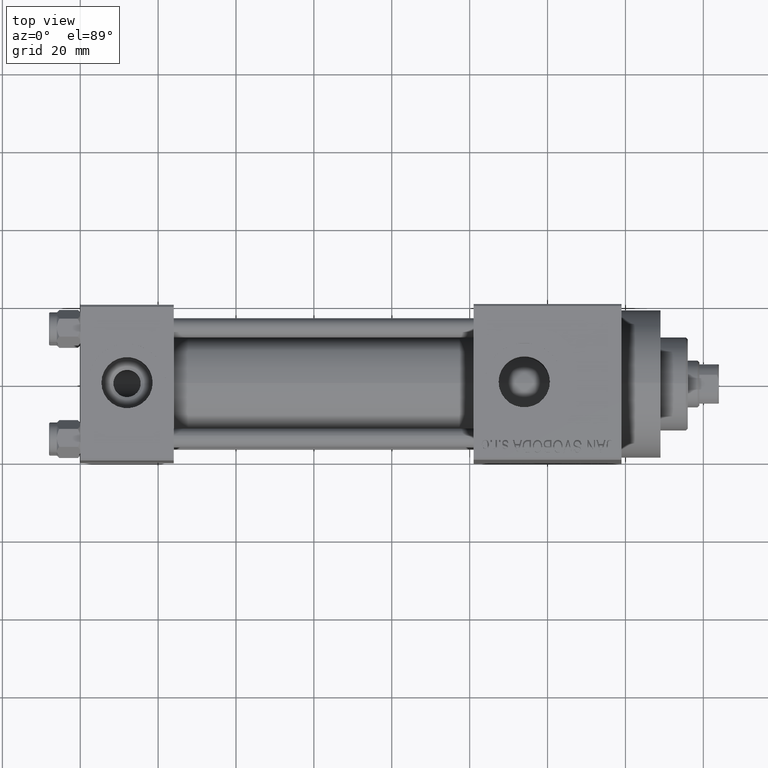
[diagram: clean part render]
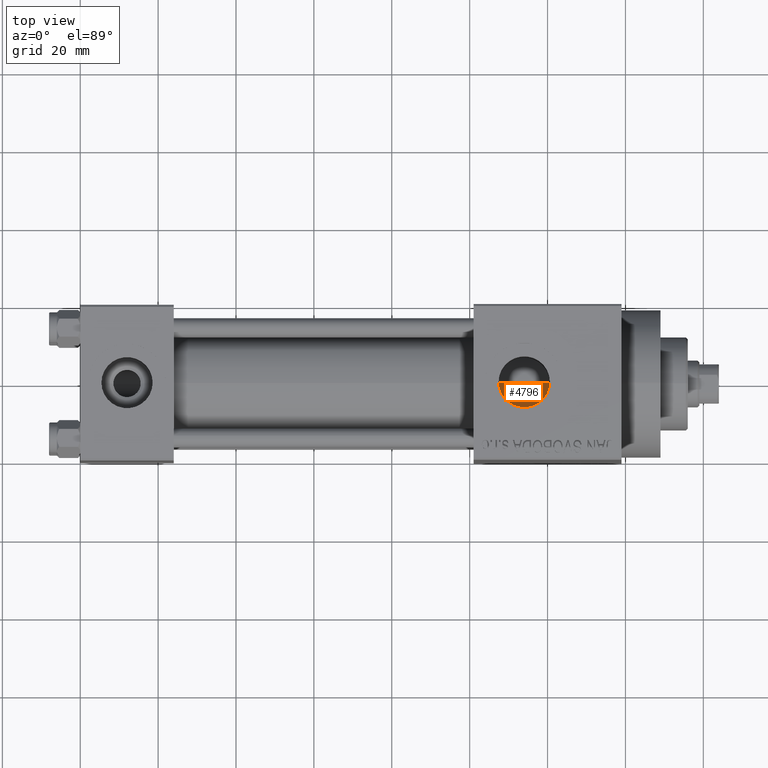
[diagram: same view with one face highlighted and labeled with its STEP entity id]
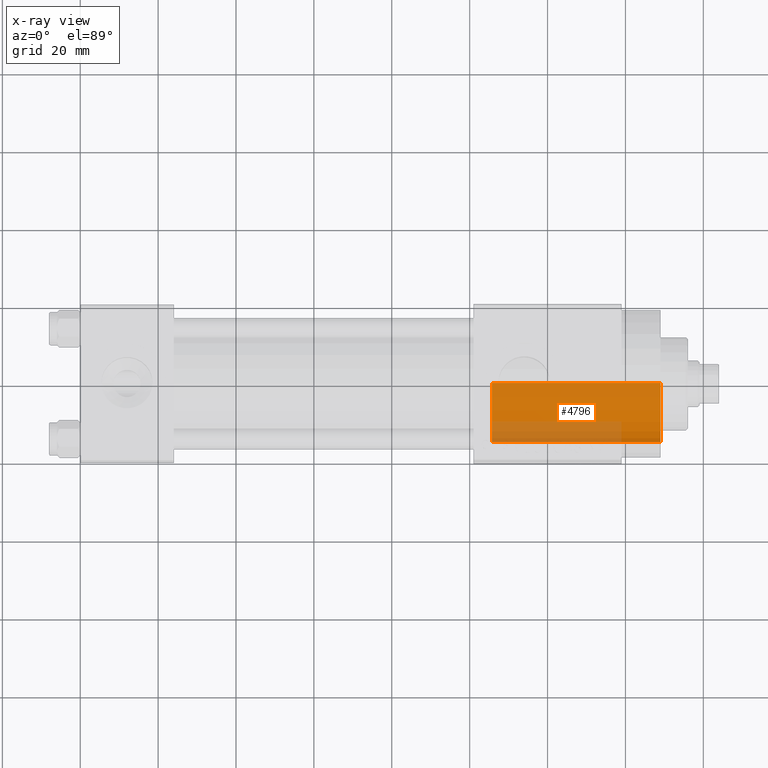
[diagram: x-ray of the same camera — body ghosted, the highlighted face saturated]
A machine part, top view. The second image highlights one B-rep face of the part: STEP entity #4796.
The next image is the same camera in x-ray: the body ghosted, the highlighted face saturated — about 27% of this face is hidden behind the body in this view.
In plain terms, the highlighted cylindrical surface (partial cylindrical patch) has radius 15 mm, axis along (-1, 0, 0).
Its self-contained STEP definition (entity closure, byte-faithful):
#275 = ORIENTED_EDGE ( 'NONE', *, *, #18449, .F. ) ;
#930 = VECTOR ( 'NONE', #10353, 1000.000000000000000 ) ;
#1928 = VECTOR ( 'NONE', #46035, 1000.000000000000000 ) ;
#2417 = CARTESIAN_POINT ( 'NONE',  ( -15.00000000000000000, 0.000000000000000000, 0.000000000000000000 ) ) ;
#2958 = VERTEX_POINT ( 'NONE', #36314 ) ;
#3379 = CARTESIAN_POINT ( 'NONE',  ( 0.000000000000000000, 0.000000000000000000, 43.25999999999999801 ) ) ;
#3931 = ORIENTED_EDGE ( 'NONE', *, *, #23738, .T. ) ;
#4145 = AXIS2_PLACEMENT_3D ( 'NONE', #3379, #40047, #32903 ) ;
#4796 = ADVANCED_FACE ( 'NONE', ( #10291 ), #35997, .T. ) ;
#5092 = CIRCLE ( 'NONE', #40050, 15.00000000000000000 ) ;
#7306 = CARTESIAN_POINT ( 'NONE',  ( 0.000000000000000000, 0.000000000000000000, 0.000000000000000000 ) ) ;
#7766 = DIRECTION ( 'NONE',  ( 1.000000000000000000, 0.000000000000000000, 0.000000000000000000 ) ) ;
#9323 = CARTESIAN_POINT ( 'NONE',  ( 0.000000000000000000, 0.000000000000000000, 43.25999999999999801 ) ) ;
#9620 = CARTESIAN_POINT ( 'NONE',  ( 15.00000000000000000, 1.836970198721029589E-15, 43.25999999999999801 ) ) ;
#10291 = FACE_OUTER_BOUND ( 'NONE', #30567, .T. ) ;
#10353 = DIRECTION ( 'NONE',  ( -0.000000000000000000, -0.000000000000000000, -1.000000000000000000 ) ) ;
#12488 = AXIS2_PLACEMENT_3D ( 'NONE', #7306, #29444, #7766 ) ;
#13931 = ORIENTED_EDGE ( 'NONE', *, *, #32995, .F. ) ;
#14779 = VERTEX_POINT ( 'NONE', #9620 ) ;
#16920 = DIRECTION ( 'NONE',  ( 0.000000000000000000, 0.000000000000000000, 1.000000000000000000 ) ) ;
#18449 = EDGE_CURVE ( 'NONE', #20537, #36172, #35827, .T. ) ;
#18562 = CIRCLE ( 'NONE', #12488, 15.00000000000000000 ) ;
#20537 = VERTEX_POINT ( 'NONE', #23930 ) ;
#20891 = ORIENTED_EDGE ( 'NONE', *, *, #29079, .T. ) ;
#23738 = EDGE_CURVE ( 'NONE', #2958, #36172, #18562, .T. ) ;
#23930 = CARTESIAN_POINT ( 'NONE',  ( -15.00000000000000000, 0.000000000000000000, 43.25999999999999801 ) ) ;
#25062 = LINE ( 'NONE', #39102, #1928 ) ;
#29079 = EDGE_CURVE ( 'NONE', #14779, #2958, #25062, .T. ) ;
#29444 = DIRECTION ( 'NONE',  ( 0.000000000000000000, 0.000000000000000000, 1.000000000000000000 ) ) ;
#30567 = EDGE_LOOP ( 'NONE', ( #13931, #20891, #3931, #275 ) ) ;
#32903 = DIRECTION ( 'NONE',  ( -1.000000000000000000, 0.000000000000000000, 0.000000000000000000 ) ) ;
#32995 = EDGE_CURVE ( 'NONE', #14779, #20537, #5092, .T. ) ;
#35827 = LINE ( 'NONE', #36301, #930 ) ;
#35997 = CYLINDRICAL_SURFACE ( 'NONE', #4145, 15.00000000000000000 ) ;
#36172 = VERTEX_POINT ( 'NONE', #2417 ) ;
#36301 = CARTESIAN_POINT ( 'NONE',  ( -15.00000000000000000, 0.000000000000000000, 43.25999999999999801 ) ) ;
#36314 = CARTESIAN_POINT ( 'NONE',  ( 15.00000000000000000, 1.836970198721029589E-15, 0.000000000000000000 ) ) ;
#38132 = DIRECTION ( 'NONE',  ( 1.000000000000000000, 0.000000000000000000, 0.000000000000000000 ) ) ;
#39102 = CARTESIAN_POINT ( 'NONE',  ( 15.00000000000000000, 1.836970198721029589E-15, 43.25999999999999801 ) ) ;
#40047 = DIRECTION ( 'NONE',  ( -0.000000000000000000, -0.000000000000000000, -1.000000000000000000 ) ) ;
#40050 = AXIS2_PLACEMENT_3D ( 'NONE', #9323, #16920, #38132 ) ;
#46035 = DIRECTION ( 'NONE',  ( -0.000000000000000000, -0.000000000000000000, -1.000000000000000000 ) ) ;